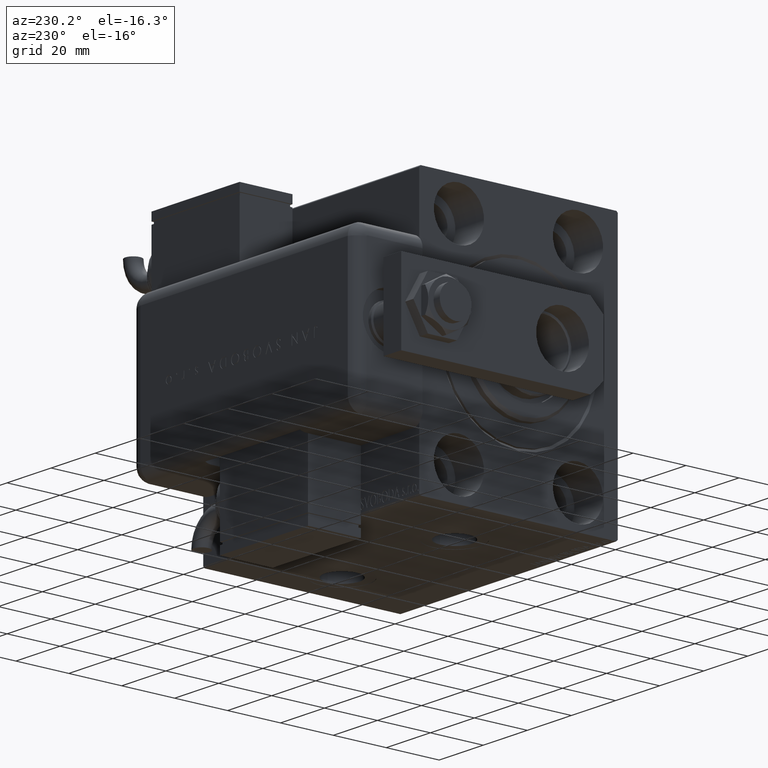
[diagram: clean part render]
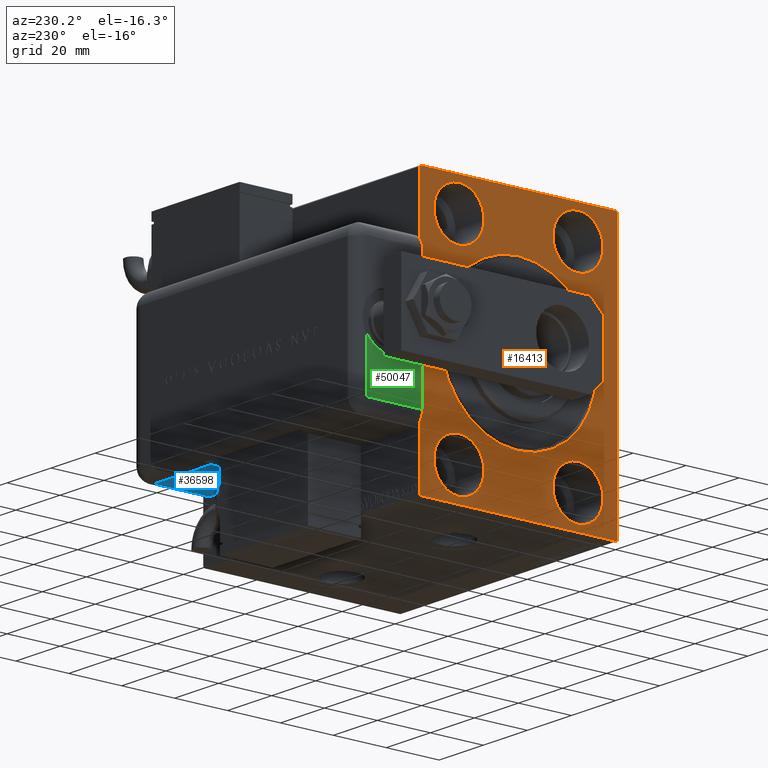
[diagram: same view with three faces highlighted in distinct colors, each labeled with its STEP entity id]
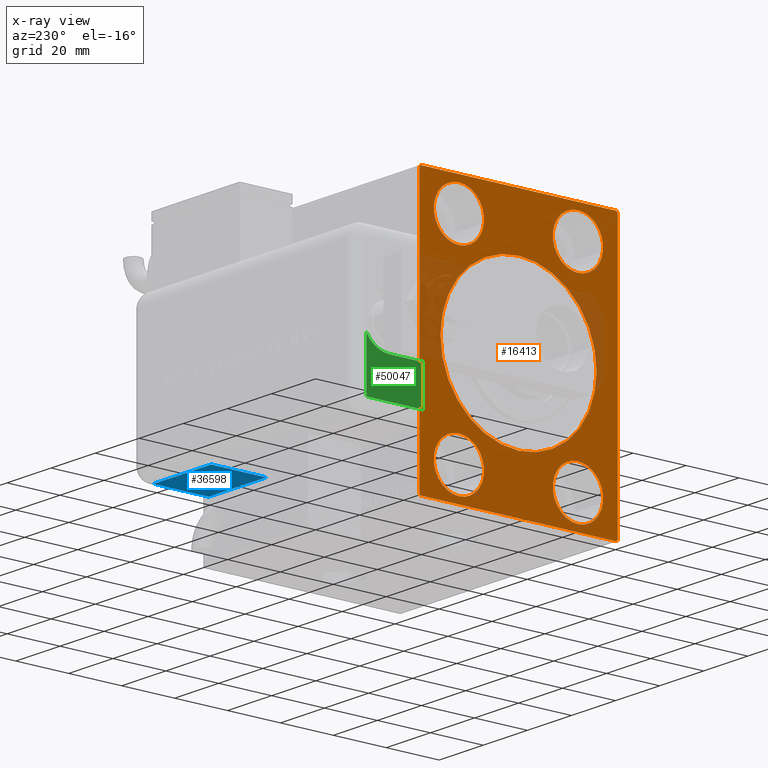
[diagram: x-ray of the same camera — body ghosted, the three highlighted faces saturated]
A machine part, auxiliary view with three faces highlighted in distinct colors.
The next image is the same camera in x-ray (body ghosted, the three faces saturated) — at least one of them is partly hidden behind the body in this view.
Their STEP definitions:

[orange] entity #16413 — the highlighted planar face has unit normal (1, 0, 0).
#63 = VERTEX_POINT ( 'NONE', #20838 ) ;
#654 = CARTESIAN_POINT ( 'NONE',  ( 0.000000000000000000, -37.50000000000000711, 49.49999999999997868 ) ) ;
#693 = EDGE_LOOP ( 'NONE', ( #783, #10468 ) ) ;
#783 = ORIENTED_EDGE ( 'NONE', *, *, #30365, .F. ) ;
#957 = DIRECTION ( 'NONE',  ( -0.000000000000000000, 0.7071067811865474617, 0.7071067811865474617 ) ) ;
#1272 = EDGE_CURVE ( 'NONE', #44700, #30606, #21339, .T. ) ;
#1416 = LINE ( 'NONE', #25026, #20168 ) ;
#1493 = LINE ( 'NONE', #19961, #43898 ) ;
#2286 = EDGE_CURVE ( 'NONE', #23947, #48424, #42676, .T. ) ;
#3639 = CIRCLE ( 'NONE', #30688, 9.500000000000001776 ) ;
#3818 = DIRECTION ( 'NONE',  ( -1.000000000000000000, 0.000000000000000000, 0.000000000000000000 ) ) ;
#3858 = LINE ( 'NONE', #31408, #54478 ) ;
#4132 = CIRCLE ( 'NONE', #7019, 9.500000000000001776 ) ;
#5810 = VERTEX_POINT ( 'NONE', #17613 ) ;
#5977 = EDGE_CURVE ( 'NONE', #44435, #11528, #4132, .T. ) ;
#6718 = EDGE_CURVE ( 'NONE', #41059, #18984, #55420, .T. ) ;
#7019 = AXIS2_PLACEMENT_3D ( 'NONE', #41809, #23348, #42408 ) ;
#7061 = AXIS2_PLACEMENT_3D ( 'NONE', #58798, #22476, #50308 ) ;
#7365 = DIRECTION ( 'NONE',  ( -1.000000000000000000, 0.000000000000000000, 0.000000000000000000 ) ) ;
#7960 = CIRCLE ( 'NONE', #19580, 9.500000000000001776 ) ;
#8135 = EDGE_LOOP ( 'NONE', ( #51506, #44106 ) ) ;
#8235 = FACE_OUTER_BOUND ( 'NONE', #22855, .T. ) ;
#8241 = EDGE_CURVE ( 'NONE', #48424, #23947, #59337, .T. ) ;
#9193 = VERTEX_POINT ( 'NONE', #28646 ) ;
#9423 = FACE_BOUND ( 'NONE', #33636, .T. ) ;
#9586 = CARTESIAN_POINT ( 'NONE',  ( 0.000000000000000000, 22.50000000000000355, 37.99999999999999289 ) ) ;
#9826 = EDGE_CURVE ( 'NONE', #5810, #15818, #1493, .T. ) ;
#9936 = CARTESIAN_POINT ( 'NONE',  ( 0.000000000000000000, -22.49999999999999645, 28.49999999999998934 ) ) ;
#10059 = CARTESIAN_POINT ( 'NONE',  ( 0.000000000000000000, 3.612708057484693970E-15, -29.50000000000001421 ) ) ;
#10093 = ORIENTED_EDGE ( 'NONE', *, *, #55736, .T. ) ;
#10197 = CARTESIAN_POINT ( 'NONE',  ( 0.000000000000000000, -22.50000000000000711, -47.49999999999999289 ) ) ;
#10468 = ORIENTED_EDGE ( 'NONE', *, *, #34745, .F. ) ;
#11211 = VERTEX_POINT ( 'NONE', #13493 ) ;
#11374 = CARTESIAN_POINT ( 'NONE',  ( 0.000000000000000000, 22.50000000000000355, 28.49999999999998934 ) ) ;
#11517 = EDGE_CURVE ( 'NONE', #55821, #9193, #3858, .T. ) ;
#11528 = VERTEX_POINT ( 'NONE', #10197 ) ;
#11533 = DIRECTION ( 'NONE',  ( 0.000000000000000000, -0.7071067811865474617, -0.7071067811865474617 ) ) ;
#11606 = ORIENTED_EDGE ( 'NONE', *, *, #51283, .F. ) ;
#12673 = DIRECTION ( 'NONE',  ( 0.000000000000000000, 0.000000000000000000, 1.000000000000000000 ) ) ;
#13462 = DIRECTION ( 'NONE',  ( 0.000000000000000000, 0.000000000000000000, 1.000000000000000000 ) ) ;
#13493 = CARTESIAN_POINT ( 'NONE',  ( 0.000000000000000000, 36.99999999999999289, 50.00000000000000711 ) ) ;
#14355 = DIRECTION ( 'NONE',  ( -1.000000000000000000, 0.000000000000000000, 0.000000000000000000 ) ) ;
#15803 = AXIS2_PLACEMENT_3D ( 'NONE', #38931, #24111, #24722 ) ;
#15818 = VERTEX_POINT ( 'NONE', #54163 ) ;
#15882 = ORIENTED_EDGE ( 'NONE', *, *, #9826, .F. ) ;
#16115 = DIRECTION ( 'NONE',  ( 1.000000000000000000, 0.000000000000000000, 0.000000000000000000 ) ) ;
#16199 = CARTESIAN_POINT ( 'NONE',  ( 0.000000000000000000, -37.50000000000000711, -49.49999999999999289 ) ) ;
#16413 = ADVANCED_FACE ( 'NONE', ( #9423, #35762, #18198, #26692, #18501, #8235 ), #59392, .F. ) ;
#16466 = CARTESIAN_POINT ( 'NONE',  ( 0.000000000000000000, -22.49999999999999645, 37.99999999999999289 ) ) ;
#16553 = AXIS2_PLACEMENT_3D ( 'NONE', #9586, #50760, #46510 ) ;
#16724 = ORIENTED_EDGE ( 'NONE', *, *, #32402, .F. ) ;
#17408 = CARTESIAN_POINT ( 'NONE',  ( 0.000000000000000000, -36.99999999999999289, -50.00000000000000711 ) ) ;
#17613 = CARTESIAN_POINT ( 'NONE',  ( 0.000000000000000000, -36.99999999999999289, -50.00000000000000711 ) ) ;
#17645 = LINE ( 'NONE', #36099, #35603 ) ;
#18105 = VERTEX_POINT ( 'NONE', #28975 ) ;
#18198 = FACE_BOUND ( 'NONE', #28613, .T. ) ;
#18491 = EDGE_CURVE ( 'NONE', #11211, #9193, #19152, .T. ) ;
#18501 = FACE_BOUND ( 'NONE', #8135, .T. ) ;
#18578 = CARTESIAN_POINT ( 'NONE',  ( 0.000000000000000000, -22.49999999999999645, 47.49999999999999289 ) ) ;
#18984 = VERTEX_POINT ( 'NONE', #27130 ) ;
#19152 = LINE ( 'NONE', #31875, #24546 ) ;
#19580 = AXIS2_PLACEMENT_3D ( 'NONE', #22355, #22944, #12673 ) ;
#19828 = VERTEX_POINT ( 'NONE', #16199 ) ;
#19961 = CARTESIAN_POINT ( 'NONE',  ( 0.000000000000000000, -37.50000000000000711, -50.00000000000000711 ) ) ;
#20168 = VECTOR ( 'NONE', #48320, 1000.000000000000000 ) ;
#20375 = CARTESIAN_POINT ( 'NONE',  ( 0.000000000000000000, 0.000000000000000000, 0.000000000000000000 ) ) ;
#20596 = VERTEX_POINT ( 'NONE', #23205 ) ;
#20838 = CARTESIAN_POINT ( 'NONE',  ( 0.000000000000000000, 22.49999999999999645, -47.49999999999999289 ) ) ;
#21339 = CIRCLE ( 'NONE', #40700, 9.500000000000001776 ) ;
#22033 = EDGE_CURVE ( 'NONE', #55821, #15818, #26045, .T. ) ;
#22355 = CARTESIAN_POINT ( 'NONE',  ( 0.000000000000000000, 22.49999999999999645, -37.99999999999999289 ) ) ;
#22476 = DIRECTION ( 'NONE',  ( -1.000000000000000000, 0.000000000000000000, 0.000000000000000000 ) ) ;
#22855 = EDGE_LOOP ( 'NONE', ( #40376, #37683, #48459, #23569, #29539, #56611, #15882, #10093 ) ) ;
#22944 = DIRECTION ( 'NONE',  ( -1.000000000000000000, 0.000000000000000000, 0.000000000000000000 ) ) ;
#23048 = CARTESIAN_POINT ( 'NONE',  ( 0.000000000000000000, 0.000000000000000000, 0.000000000000000000 ) ) ;
#23205 = CARTESIAN_POINT ( 'NONE',  ( 0.000000000000000000, -37.50000000000000711, 49.49999999999997868 ) ) ;
#23254 = CIRCLE ( 'NONE', #30990, 9.500000000000001776 ) ;
#23313 = AXIS2_PLACEMENT_3D ( 'NONE', #20375, #16115, #43670 ) ;
#23348 = DIRECTION ( 'NONE',  ( -1.000000000000000000, 0.000000000000000000, 0.000000000000000000 ) ) ;
#23472 = EDGE_CURVE ( 'NONE', #11211, #18105, #1416, .T. ) ;
#23569 = ORIENTED_EDGE ( 'NONE', *, *, #18491, .T. ) ;
#23700 = CARTESIAN_POINT ( 'NONE',  ( 0.000000000000000000, 0.000000000000000000, 29.50000000000001421 ) ) ;
#23947 = VERTEX_POINT ( 'NONE', #10059 ) ;
#24111 = DIRECTION ( 'NONE',  ( 1.000000000000000000, 0.000000000000000000, 0.000000000000000000 ) ) ;
#24546 = VECTOR ( 'NONE', #51249, 999.9999999999998863 ) ;
#24573 = EDGE_CURVE ( 'NONE', #20596, #19828, #17645, .T. ) ;
#24722 = DIRECTION ( 'NONE',  ( 0.000000000000000000, 0.000000000000000000, -1.000000000000000000 ) ) ;
#25026 = CARTESIAN_POINT ( 'NONE',  ( 0.000000000000000000, 37.49999999999999289, 50.00000000000000711 ) ) ;
#25078 = CARTESIAN_POINT ( 'NONE',  ( 0.000000000000000000, 22.49999999999999645, -28.49999999999998934 ) ) ;
#25599 = DIRECTION ( 'NONE',  ( -0.000000000000000000, -0.7071067811865474617, 0.7071067811865474617 ) ) ;
#25635 = CARTESIAN_POINT ( 'NONE',  ( 0.000000000000000000, 22.49999999999999645, -37.99999999999999289 ) ) ;
#25843 = DIRECTION ( 'NONE',  ( 0.000000000000000000, 0.000000000000000000, 1.000000000000000000 ) ) ;
#26045 = LINE ( 'NONE', #52992, #59826 ) ;
#26692 = FACE_BOUND ( 'NONE', #42216, .T. ) ;
#26785 = CARTESIAN_POINT ( 'NONE',  ( 0.000000000000000000, 37.50000000000000711, -49.50000000000000000 ) ) ;
#26826 = DIRECTION ( 'NONE',  ( 0.000000000000000000, 0.000000000000000000, 1.000000000000000000 ) ) ;
#27130 = CARTESIAN_POINT ( 'NONE',  ( 0.000000000000000000, 22.50000000000000355, 47.49999999999999289 ) ) ;
#28613 = EDGE_LOOP ( 'NONE', ( #51160, #11606 ) ) ;
#28646 = CARTESIAN_POINT ( 'NONE',  ( 0.000000000000000000, 37.49999999999999289, 49.50000000000000000 ) ) ;
#28975 = CARTESIAN_POINT ( 'NONE',  ( 0.000000000000000000, -36.99999999999999289, 49.99999999999999289 ) ) ;
#29537 = CARTESIAN_POINT ( 'NONE',  ( 0.000000000000000000, -22.50000000000000711, -28.49999999999998934 ) ) ;
#29539 = ORIENTED_EDGE ( 'NONE', *, *, #11517, .F. ) ;
#29855 = VECTOR ( 'NONE', #25599, 1000.000000000000114 ) ;
#30067 = ORIENTED_EDGE ( 'NONE', *, *, #2286, .T. ) ;
#30365 = EDGE_CURVE ( 'NONE', #38282, #63, #23254, .T. ) ;
#30606 = VERTEX_POINT ( 'NONE', #9936 ) ;
#30688 = AXIS2_PLACEMENT_3D ( 'NONE', #55816, #14355, #13462 ) ;
#30990 = AXIS2_PLACEMENT_3D ( 'NONE', #25635, #3818, #26826 ) ;
#31408 = CARTESIAN_POINT ( 'NONE',  ( 0.000000000000000000, 37.50000000000000711, -50.00000000000000000 ) ) ;
#31875 = CARTESIAN_POINT ( 'NONE',  ( 0.000000000000000000, 36.99999999999999289, 50.00000000000000711 ) ) ;
#32402 = EDGE_CURVE ( 'NONE', #18984, #41059, #46539, .T. ) ;
#33636 = EDGE_LOOP ( 'NONE', ( #59065, #30067 ) ) ;
#34745 = EDGE_CURVE ( 'NONE', #63, #38282, #7960, .T. ) ;
#35501 = CARTESIAN_POINT ( 'NONE',  ( 0.000000000000000000, -22.49999999999999645, 37.99999999999999289 ) ) ;
#35603 = VECTOR ( 'NONE', #44912, 1000.000000000000000 ) ;
#35762 = FACE_BOUND ( 'NONE', #693, .T. ) ;
#36099 = CARTESIAN_POINT ( 'NONE',  ( 0.000000000000000000, -37.50000000000000711, 49.99999999999999289 ) ) ;
#37683 = ORIENTED_EDGE ( 'NONE', *, *, #58383, .T. ) ;
#38282 = VERTEX_POINT ( 'NONE', #25078 ) ;
#38397 = DIRECTION ( 'NONE',  ( 0.000000000000000000, 1.000000000000000000, 9.251858538542970348E-17 ) ) ;
#38931 = CARTESIAN_POINT ( 'NONE',  ( 0.000000000000000000, 0.000000000000000000, 0.000000000000000000 ) ) ;
#40112 = LINE ( 'NONE', #17408, #29855 ) ;
#40376 = ORIENTED_EDGE ( 'NONE', *, *, #24573, .F. ) ;
#40700 = AXIS2_PLACEMENT_3D ( 'NONE', #16466, #54290, #25843 ) ;
#41059 = VERTEX_POINT ( 'NONE', #11374 ) ;
#41809 = CARTESIAN_POINT ( 'NONE',  ( 0.000000000000000000, -22.50000000000000711, -37.99999999999999289 ) ) ;
#42216 = EDGE_LOOP ( 'NONE', ( #16724, #44469 ) ) ;
#42408 = DIRECTION ( 'NONE',  ( 0.000000000000000000, 0.000000000000000000, 1.000000000000000000 ) ) ;
#42676 = CIRCLE ( 'NONE', #23313, 29.50000000000001421 ) ;
#43670 = DIRECTION ( 'NONE',  ( 0.000000000000000000, 0.000000000000000000, -1.000000000000000000 ) ) ;
#43898 = VECTOR ( 'NONE', #38397, 1000.000000000000000 ) ;
#44106 = ORIENTED_EDGE ( 'NONE', *, *, #47677, .F. ) ;
#44435 = VERTEX_POINT ( 'NONE', #29537 ) ;
#44469 = ORIENTED_EDGE ( 'NONE', *, *, #6718, .F. ) ;
#44700 = VERTEX_POINT ( 'NONE', #18578 ) ;
#44912 = DIRECTION ( 'NONE',  ( 0.000000000000000000, 0.000000000000000000, -1.000000000000000000 ) ) ;
#45165 = DIRECTION ( 'NONE',  ( 0.000000000000000000, 0.000000000000000000, -1.000000000000000000 ) ) ;
#46510 = DIRECTION ( 'NONE',  ( 0.000000000000000000, 0.000000000000000000, 1.000000000000000000 ) ) ;
#46539 = CIRCLE ( 'NONE', #16553, 9.500000000000001776 ) ;
#47677 = EDGE_CURVE ( 'NONE', #11528, #44435, #3639, .T. ) ;
#48320 = DIRECTION ( 'NONE',  ( 0.000000000000000000, -1.000000000000000000, -1.850371707708594316E-16 ) ) ;
#48424 = VERTEX_POINT ( 'NONE', #23700 ) ;
#48459 = ORIENTED_EDGE ( 'NONE', *, *, #23472, .F. ) ;
#49451 = DIRECTION ( 'NONE',  ( 0.000000000000000000, 0.000000000000000000, 1.000000000000000000 ) ) ;
#49878 = DIRECTION ( 'NONE',  ( 0.000000000000000000, -1.387778780781445676E-16, 1.000000000000000000 ) ) ;
#50156 = VECTOR ( 'NONE', #957, 1000.000000000000114 ) ;
#50308 = DIRECTION ( 'NONE',  ( 0.000000000000000000, 0.000000000000000000, 1.000000000000000000 ) ) ;
#50760 = DIRECTION ( 'NONE',  ( -1.000000000000000000, 0.000000000000000000, 0.000000000000000000 ) ) ;
#51160 = ORIENTED_EDGE ( 'NONE', *, *, #1272, .F. ) ;
#51249 = DIRECTION ( 'NONE',  ( -0.000000000000000000, 0.7071067811865425767, -0.7071067811865525687 ) ) ;
#51283 = EDGE_CURVE ( 'NONE', #30606, #44700, #56817, .T. ) ;
#51506 = ORIENTED_EDGE ( 'NONE', *, *, #5977, .F. ) ;
#52409 = LINE ( 'NONE', #654, #50156 ) ;
#52922 = AXIS2_PLACEMENT_3D ( 'NONE', #35501, #7365, #49451 ) ;
#52992 = CARTESIAN_POINT ( 'NONE',  ( 0.000000000000000000, 37.50000000000000711, -49.50000000000000000 ) ) ;
#54163 = CARTESIAN_POINT ( 'NONE',  ( 0.000000000000000000, 37.00000000000000711, -50.00000000000000000 ) ) ;
#54290 = DIRECTION ( 'NONE',  ( -1.000000000000000000, 0.000000000000000000, 0.000000000000000000 ) ) ;
#54478 = VECTOR ( 'NONE', #49878, 1000.000000000000000 ) ;
#55420 = CIRCLE ( 'NONE', #7061, 9.500000000000001776 ) ;
#55433 = DIRECTION ( 'NONE',  ( 1.000000000000000000, 0.000000000000000000, 0.000000000000000000 ) ) ;
#55736 = EDGE_CURVE ( 'NONE', #5810, #19828, #40112, .T. ) ;
#55816 = CARTESIAN_POINT ( 'NONE',  ( 0.000000000000000000, -22.50000000000000711, -37.99999999999999289 ) ) ;
#55821 = VERTEX_POINT ( 'NONE', #26785 ) ;
#56592 = AXIS2_PLACEMENT_3D ( 'NONE', #23048, #55433, #45165 ) ;
#56611 = ORIENTED_EDGE ( 'NONE', *, *, #22033, .T. ) ;
#56817 = CIRCLE ( 'NONE', #52922, 9.500000000000001776 ) ;
#58383 = EDGE_CURVE ( 'NONE', #20596, #18105, #52409, .T. ) ;
#58798 = CARTESIAN_POINT ( 'NONE',  ( 0.000000000000000000, 22.50000000000000355, 37.99999999999999289 ) ) ;
#59065 = ORIENTED_EDGE ( 'NONE', *, *, #8241, .T. ) ;
#59337 = CIRCLE ( 'NONE', #15803, 29.50000000000001421 ) ;
#59392 = PLANE ( 'NONE',  #56592 ) ;
#59826 = VECTOR ( 'NONE', #11533, 1000.000000000000114 ) ;

[blue] entity #36598 — the highlighted planar face has unit normal (0, 0, 1).
#157 = CARTESIAN_POINT ( 'NONE',  ( -28.99999999999999645, 20.79999999999998295, 99.00000000000000000 ) ) ;
#293 = DIRECTION ( 'NONE',  ( -0.000000000000000000, 0.000000000000000000, -1.000000000000000000 ) ) ;
#491 = DIRECTION ( 'NONE',  ( -0.000000000000000000, -0.000000000000000000, -1.000000000000000000 ) ) ;
#2417 = VECTOR ( 'NONE', #491, 1000.000000000000000 ) ;
#3808 = CARTESIAN_POINT ( 'NONE',  ( -28.99999999999999645, 20.79999999999998295, 31.00000000000001421 ) ) ;
#4865 = CARTESIAN_POINT ( 'NONE',  ( -28.99999999999999645, -9.421223957302264279E-15, 31.00000000000001421 ) ) ;
#5010 = AXIS2_PLACEMENT_3D ( 'NONE', #23892, #37211, #293 ) ;
#5425 = FACE_OUTER_BOUND ( 'NONE', #8301, .T. ) ;
#6219 = CARTESIAN_POINT ( 'NONE',  ( -28.99999999999999645, -9.421223957302265857E-15, 5.000000000000004441 ) ) ;
#7535 = LINE ( 'NONE', #26905, #40585 ) ;
#7720 = VERTEX_POINT ( 'NONE', #25811 ) ;
#8301 = EDGE_LOOP ( 'NONE', ( #17168, #57994, #55163, #20980 ) ) ;
#9003 = VECTOR ( 'NONE', #18621, 1000.000000000000000 ) ;
#15909 = VERTEX_POINT ( 'NONE', #6219 ) ;
#17168 = ORIENTED_EDGE ( 'NONE', *, *, #44235, .F. ) ;
#18621 = DIRECTION ( 'NONE',  ( 0.000000000000000000, 0.000000000000000000, -1.000000000000000000 ) ) ;
#18675 = EDGE_CURVE ( 'NONE', #35077, #46068, #59593, .T. ) ;
#20980 = ORIENTED_EDGE ( 'NONE', *, *, #27825, .T. ) ;
#23892 = CARTESIAN_POINT ( 'NONE',  ( -28.99999999999999645, 25.79999999999998295, 99.00000000000000000 ) ) ;
#24191 = PLANE ( 'NONE',  #5010 ) ;
#25811 = CARTESIAN_POINT ( 'NONE',  ( -28.99999999999999645, 20.79999999999998295, 5.000000000000004441 ) ) ;
#26905 = CARTESIAN_POINT ( 'NONE',  ( -28.99999999999999645, -1.040834085586084257E-14, 5.000000000000004441 ) ) ;
#27825 = EDGE_CURVE ( 'NONE', #7720, #15909, #7535, .T. ) ;
#35077 = VERTEX_POINT ( 'NONE', #3808 ) ;
#35230 = EDGE_CURVE ( 'NONE', #35077, #7720, #41625, .T. ) ;
#36598 = ADVANCED_FACE ( 'NONE', ( #5425 ), #24191, .F. ) ;
#37211 = DIRECTION ( 'NONE',  ( 1.000000000000000000, 0.000000000000000000, -0.000000000000000000 ) ) ;
#40585 = VECTOR ( 'NONE', #45380, 1000.000000000000000 ) ;
#41625 = LINE ( 'NONE', #157, #9003 ) ;
#41959 = LINE ( 'NONE', #46500, #2417 ) ;
#44235 = EDGE_CURVE ( 'NONE', #46068, #15909, #41959, .T. ) ;
#44271 = VECTOR ( 'NONE', #53619, 1000.000000000000000 ) ;
#45380 = DIRECTION ( 'NONE',  ( 0.000000000000000000, -1.000000000000000000, 0.000000000000000000 ) ) ;
#46068 = VERTEX_POINT ( 'NONE', #4865 ) ;
#46500 = CARTESIAN_POINT ( 'NONE',  ( -28.99999999999999645, -9.421223957302265857E-15, 99.00000000000000000 ) ) ;
#53312 = CARTESIAN_POINT ( 'NONE',  ( -28.99999999999999645, 22.99999999999998934, 31.00000000000001421 ) ) ;
#53619 = DIRECTION ( 'NONE',  ( 0.000000000000000000, -1.000000000000000000, 0.000000000000000000 ) ) ;
#55163 = ORIENTED_EDGE ( 'NONE', *, *, #35230, .T. ) ;
#57994 = ORIENTED_EDGE ( 'NONE', *, *, #18675, .F. ) ;
#59593 = LINE ( 'NONE', #53312, #44271 ) ;

[green] entity #50047 — the highlighted planar face has unit normal (-1, 0, 0).
#2708 = CARTESIAN_POINT ( 'NONE',  ( -23.99999999999999645, 21.21742430504414045, 102.0000000000000142 ) ) ;
#4104 = DIRECTION ( 'NONE',  ( 1.387778820721720319E-16, -1.000000000000000000, -0.000000000000000000 ) ) ;
#5101 = DIRECTION ( 'NONE',  ( 0.000000000000000000, 0.000000000000000000, 1.000000000000000000 ) ) ;
#5455 = ORIENTED_EDGE ( 'NONE', *, *, #9821, .T. ) ;
#5992 = VERTEX_POINT ( 'NONE', #51200 ) ;
#6172 = CARTESIAN_POINT ( 'NONE',  ( -24.41742430504415751, -1.040834085586084257E-14, 102.0000000000000142 ) ) ;
#6303 = CARTESIAN_POINT ( 'NONE',  ( 23.99999999999999289, 20.79999999999998295, 102.0000000000000142 ) ) ;
#6530 = DIRECTION ( 'NONE',  ( 0.000000000000000000, 0.000000000000000000, 1.000000000000000000 ) ) ;
#7513 = LINE ( 'NONE', #11181, #8163 ) ;
#7599 = EDGE_CURVE ( 'NONE', #15618, #49529, #28564, .T. ) ;
#8163 = VECTOR ( 'NONE', #42967, 1000.000000000000000 ) ;
#8305 = LINE ( 'NONE', #59459, #10201 ) ;
#9821 = EDGE_CURVE ( 'NONE', #25946, #31287, #7513, .T. ) ;
#10201 = VECTOR ( 'NONE', #26757, 1000.000000000000000 ) ;
#10247 = AXIS2_PLACEMENT_3D ( 'NONE', #14709, #6530, #47081 ) ;
#11181 = CARTESIAN_POINT ( 'NONE',  ( -23.99999999999999289, 21.21742430504414045, 102.0000000000000142 ) ) ;
#11186 = EDGE_CURVE ( 'NONE', #5992, #51605, #54364, .T. ) ;
#14709 = CARTESIAN_POINT ( 'NONE',  ( -1.734723475976807094E-15, 12.49999964024999599, 102.0000000000000142 ) ) ;
#14873 = CIRCLE ( 'NONE', #35105, 0.4174243050441631131 ) ;
#15618 = VERTEX_POINT ( 'NONE', #46628 ) ;
#16135 = EDGE_LOOP ( 'NONE', ( #16605, #24536, #5455, #54304, #17701, #19219 ) ) ;
#16605 = ORIENTED_EDGE ( 'NONE', *, *, #11186, .F. ) ;
#16676 = CARTESIAN_POINT ( 'NONE',  ( -10.00000000000000178, -8.673617379884035472E-16, 102.0000000000000142 ) ) ;
#17701 = ORIENTED_EDGE ( 'NONE', *, *, #7599, .T. ) ;
#19219 = ORIENTED_EDGE ( 'NONE', *, *, #45703, .T. ) ;
#19930 = CIRCLE ( 'NONE', #10247, 10.00000000000000178 ) ;
#23575 = DIRECTION ( 'NONE',  ( 1.000000000000000000, 0.000000000000000000, -0.000000000000000000 ) ) ;
#24167 = DIRECTION ( 'NONE',  ( 0.000000000000000000, 0.000000000000000000, 1.000000000000000000 ) ) ;
#24529 = VECTOR ( 'NONE', #4104, 1000.000000000000000 ) ;
#24536 = ORIENTED_EDGE ( 'NONE', *, *, #46650, .F. ) ;
#25946 = VERTEX_POINT ( 'NONE', #29367 ) ;
#26757 = DIRECTION ( 'NONE',  ( 1.000000000000000000, 0.000000000000000000, 0.000000000000000000 ) ) ;
#28564 = LINE ( 'NONE', #6172, #43814 ) ;
#29367 = CARTESIAN_POINT ( 'NONE',  ( -4.899643580265686360, 21.21742430504414045, 102.0000000000000142 ) ) ;
#31287 = VERTEX_POINT ( 'NONE', #2708 ) ;
#33830 = FACE_OUTER_BOUND ( 'NONE', #16135, .T. ) ;
#33974 = CARTESIAN_POINT ( 'NONE',  ( -24.41742430504415751, -1.040834085586084257E-14, 102.0000000000000142 ) ) ;
#35105 = AXIS2_PLACEMENT_3D ( 'NONE', #39270, #24167, #57748 ) ;
#39270 = CARTESIAN_POINT ( 'NONE',  ( -23.99999999999999645, 20.79999999999998295, 102.0000000000000142 ) ) ;
#40740 = EDGE_CURVE ( 'NONE', #31287, #15618, #14873, .T. ) ;
#42967 = DIRECTION ( 'NONE',  ( -1.000000000000000000, 0.000000000000000000, -0.000000000000000000 ) ) ;
#43814 = VECTOR ( 'NONE', #47335, 1000.000000000000000 ) ;
#45703 = EDGE_CURVE ( 'NONE', #49529, #51605, #8305, .T. ) ;
#46135 = AXIS2_PLACEMENT_3D ( 'NONE', #6303, #5101, #23575 ) ;
#46628 = CARTESIAN_POINT ( 'NONE',  ( -24.41742430504416106, 20.79999999999998295, 102.0000000000000142 ) ) ;
#46650 = EDGE_CURVE ( 'NONE', #25946, #5992, #19930, .T. ) ;
#47081 = DIRECTION ( 'NONE',  ( 1.000000000000000000, 0.000000000000000000, 0.000000000000000000 ) ) ;
#47335 = DIRECTION ( 'NONE',  ( -0.000000000000000000, -1.000000000000000000, 0.000000000000000000 ) ) ;
#47777 = PLANE ( 'NONE',  #46135 ) ;
#49529 = VERTEX_POINT ( 'NONE', #33974 ) ;
#50047 = ADVANCED_FACE ( 'NONE', ( #33830 ), #47777, .T. ) ;
#51200 = CARTESIAN_POINT ( 'NONE',  ( -10.00000000000000355, 12.49999964024999599, 102.0000000000000142 ) ) ;
#51605 = VERTEX_POINT ( 'NONE', #16676 ) ;
#54067 = CARTESIAN_POINT ( 'NONE',  ( -10.00000000000000178, -8.673617379884035472E-16, 102.0000000000000142 ) ) ;
#54304 = ORIENTED_EDGE ( 'NONE', *, *, #40740, .T. ) ;
#54364 = LINE ( 'NONE', #54067, #24529 ) ;
#57748 = DIRECTION ( 'NONE',  ( 1.000000000000000000, 0.000000000000000000, 0.000000000000000000 ) ) ;
#59459 = CARTESIAN_POINT ( 'NONE',  ( -28.99999999999999645, -9.421223957302265857E-15, 102.0000000000000142 ) ) ;